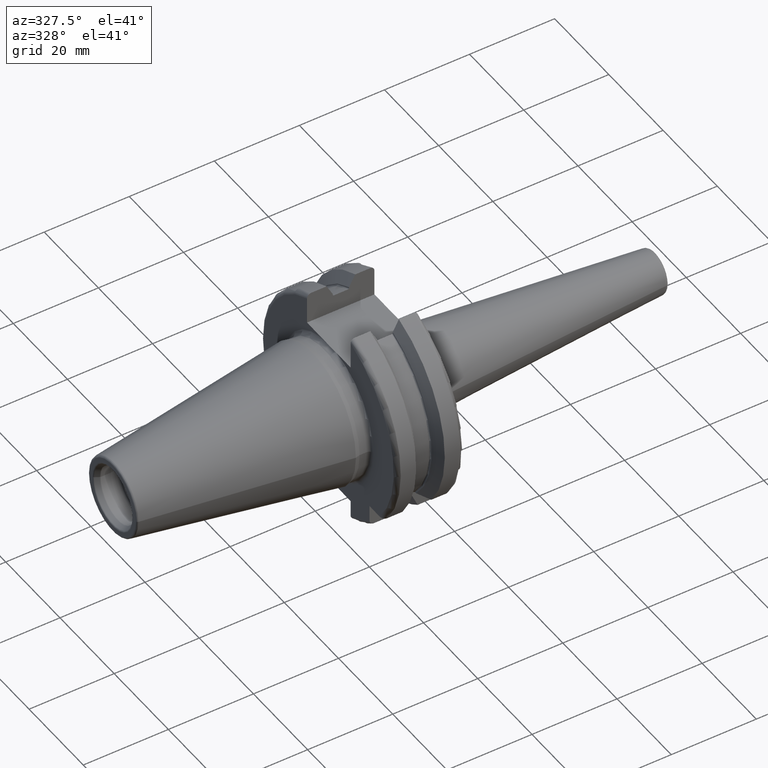
[diagram: clean part render]
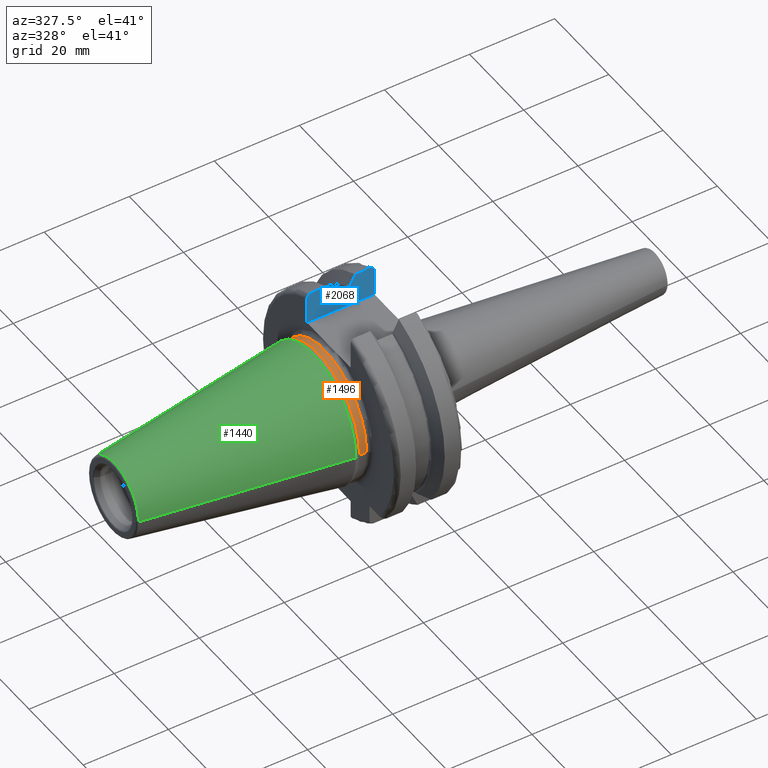
[diagram: same view with three faces highlighted in distinct colors, each labeled with its STEP entity id]
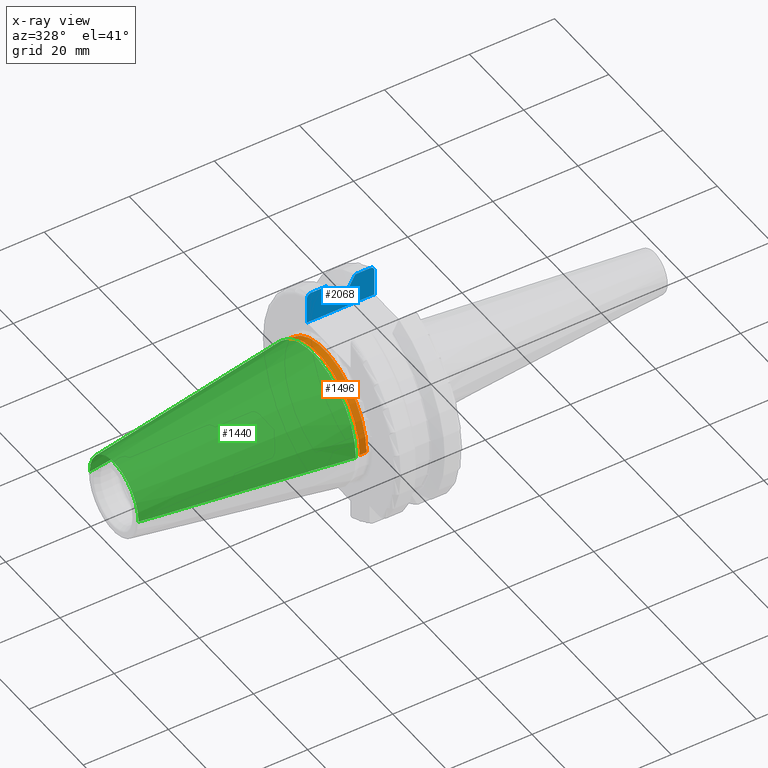
[diagram: x-ray of the same camera — body ghosted, the three highlighted faces saturated]
A machine part, auxiliary view with three faces highlighted in distinct colors.
The next image is the same camera in x-ray (body ghosted, the three faces saturated) — at least one of them is partly hidden behind the body in this view.
Their STEP definitions:

[orange] entity #1496 — the highlighted cylindrical surface (partial cylindrical patch) has radius 15.525 mm, axis along (1, 0, 0).
#73=CARTESIAN_POINT('',(5.5E-1,0.E0,0.E0));
#74=DIRECTION('',(1.E0,0.E0,0.E0));
#75=DIRECTION('',(0.E0,1.E0,0.E0));
#76=AXIS2_PLACEMENT_3D('',#73,#74,#75);
#78=CARTESIAN_POINT('',(2.2E0,0.E0,0.E0));
#79=DIRECTION('',(1.E0,0.E0,0.E0));
#80=DIRECTION('',(0.E0,1.E0,0.E0));
#81=AXIS2_PLACEMENT_3D('',#78,#79,#80);
#83=DIRECTION('',(-1.E0,0.E0,0.E0));
#84=VECTOR('',#83,1.65E0);
#85=CARTESIAN_POINT('',(2.2E0,1.5525E1,0.E0));
#86=LINE('',#85,#84);
#87=DIRECTION('',(-1.E0,0.E0,0.E0));
#88=VECTOR('',#87,1.65E0);
#89=CARTESIAN_POINT('',(2.2E0,-1.5525E1,0.E0));
#90=LINE('',#89,#88);
#1143=CARTESIAN_POINT('',(2.2E0,1.5525E1,0.E0));
#1145=VERTEX_POINT('',#1143);
#1146=CARTESIAN_POINT('',(5.5E-1,1.5525E1,0.E0));
#1147=VERTEX_POINT('',#1146);
#1149=CARTESIAN_POINT('',(2.2E0,-1.5525E1,0.E0));
#1151=VERTEX_POINT('',#1149);
#1152=CARTESIAN_POINT('',(5.5E-1,-1.5525E1,0.E0));
#1153=VERTEX_POINT('',#1152);
#1482=CARTESIAN_POINT('',(-5.0985E1,0.E0,0.E0));
#1483=DIRECTION('',(1.E0,0.E0,0.E0));
#1484=DIRECTION('',(0.E0,-1.E0,0.E0));
#1485=AXIS2_PLACEMENT_3D('',#1482,#1483,#1484);
#1486=CYLINDRICAL_SURFACE('',#1485,1.5525E1);
#1488=ORIENTED_EDGE('',*,*,#1487,.F.);
#1490=ORIENTED_EDGE('',*,*,#1489,.T.);
#1492=ORIENTED_EDGE('',*,*,#1491,.T.);
#1493=ORIENTED_EDGE('',*,*,#1475,.F.);
#1494=EDGE_LOOP('',(#1488,#1490,#1492,#1493));
#1495=FACE_OUTER_BOUND('',#1494,.F.);
#1496=ADVANCED_FACE('',(#1495),#1486,.T.);
#77=CIRCLE('',#76,1.5525E1);
#82=CIRCLE('',#81,1.5525E1);
#1475=EDGE_CURVE('',#1147,#1153,#77,.T.);
#1487=EDGE_CURVE('',#1145,#1147,#86,.T.);
#1489=EDGE_CURVE('',#1145,#1151,#82,.T.);
#1491=EDGE_CURVE('',#1151,#1153,#90,.T.);

[blue] entity #2068 — the highlighted planar face has unit normal (0, 1, 0).
#164=DIRECTION('',(0.E0,0.E0,-1.E0));
#165=VECTOR('',#164,6.299061927434E0);
#166=CARTESIAN_POINT('',(1.905E1,8.05E0,2.259906192743E1));
#167=LINE('',#166,#165);
#182=DIRECTION('',(0.E0,0.E0,-1.E0));
#183=VECTOR('',#182,2.010155149636E-1);
#184=CARTESIAN_POINT('',(9.2625E0,8.05E0,2.097053946232E1));
#185=LINE('',#184,#183);
#264=CARTESIAN_POINT('',(9.2625E0,8.05E0,2.076952394736E1));
#265=CARTESIAN_POINT('',(9.2625E0,8.05E0,2.073187780160E1));
#266=CARTESIAN_POINT('',(9.276067528209E0,8.05E0,2.066300861555E1));
#267=CARTESIAN_POINT('',(9.333632786878E0,8.05E0,2.057158784050E1));
#268=CARTESIAN_POINT('',(9.418378467911E0,8.05E0,2.051405396285E1));
#269=CARTESIAN_POINT('',(9.479594642679E0,8.05E0,2.050117374689E1));
#270=CARTESIAN_POINT('',(9.5125E0,8.05E0,2.050117374689E1));
#311=DIRECTION('',(1.E0,0.E0,0.E0));
#312=VECTOR('',#311,3.325E0);
#313=CARTESIAN_POINT('',(9.5125E0,8.05E0,2.050117374689E1));
#314=LINE('',#313,#312);
#360=CARTESIAN_POINT('',(9.2625E0,8.05E0,2.097053946232E1));
#361=CARTESIAN_POINT('',(9.107499443139E0,8.05E0,2.125810926880E1));
#362=CARTESIAN_POINT('',(8.792722656959E0,8.05E0,2.184058962555E1));
#363=CARTESIAN_POINT('',(8.306354261993E0,8.05E0,2.273624464338E1));
#364=CARTESIAN_POINT('',(7.972547925064E0,8.05E0,2.334823038493E1));
#365=CARTESIAN_POINT('',(7.803274427933E0,8.05E0,2.365792890344E1));
#433=DIRECTION('',(1.E0,0.E0,0.E0));
#434=VECTOR('',#433,3.603274427933E0);
#435=CARTESIAN_POINT('',(4.2E0,8.05E0,2.365792890344E1));
#436=LINE('',#435,#434);
#446=DIRECTION('',(1.E0,0.E0,0.E0));
#447=VECTOR('',#446,3.503274427933E0);
#448=CARTESIAN_POINT('',(1.454672557207E1,8.05E0,2.365792890344E1));
#449=LINE('',#448,#447);
#500=CARTESIAN_POINT('',(1.30875E1,8.05E0,2.097053946232E1));
#501=CARTESIAN_POINT('',(1.324250055686E1,8.05E0,2.125810926880E1));
#502=CARTESIAN_POINT('',(1.355727734304E1,8.05E0,2.184058962555E1));
#503=CARTESIAN_POINT('',(1.404364573801E1,8.05E0,2.273624464338E1));
#504=CARTESIAN_POINT('',(1.437745207494E1,8.05E0,2.334823038493E1));
#505=CARTESIAN_POINT('',(1.454672557207E1,8.05E0,2.365792890344E1));
#511=DIRECTION('',(0.E0,0.E0,-1.E0));
#512=VECTOR('',#511,2.010155149636E-1);
#513=CARTESIAN_POINT('',(1.30875E1,8.05E0,2.097053946232E1));
#514=LINE('',#513,#512);
#536=DIRECTION('',(-1.E0,0.E0,0.E0));
#537=VECTOR('',#536,1.585E1);
#538=CARTESIAN_POINT('',(1.905E1,8.05E0,1.63E1));
#539=LINE('',#538,#537);
#607=CARTESIAN_POINT('',(1.28375E1,8.05E0,2.050117374689E1));
#608=CARTESIAN_POINT('',(1.287040655318E1,8.05E0,2.050117374689E1));
#609=CARTESIAN_POINT('',(1.293162343753E1,8.05E0,2.051407928406E1));
#610=CARTESIAN_POINT('',(1.301621033138E1,8.05E0,2.057143537883E1));
#611=CARTESIAN_POINT('',(1.307392336501E1,8.05E0,2.066293039418E1));
#612=CARTESIAN_POINT('',(1.30875E1,8.05E0,2.073184300563E1));
#613=CARTESIAN_POINT('',(1.30875E1,8.05E0,2.076952394736E1));
#697=CARTESIAN_POINT('',(1.805E1,8.05E0,2.365792890344E1));
#698=CARTESIAN_POINT('',(1.812787778922E1,8.05E0,2.365792890344E1));
#699=CARTESIAN_POINT('',(1.827882991524E1,8.05E0,2.363929172395E1));
#700=CARTESIAN_POINT('',(1.849654974587E1,8.05E0,2.355713862194E1));
#701=CARTESIAN_POINT('',(1.868847466175E1,8.05E0,2.342608613141E1));
#702=CARTESIAN_POINT('',(1.884523785092E1,8.05E0,2.325594508190E1));
#703=CARTESIAN_POINT('',(1.896155033894E1,8.05E0,2.305567967645E1));
#704=CARTESIAN_POINT('',(1.903340173188E1,8.05E0,2.283388392250E1));
#705=CARTESIAN_POINT('',(1.905E1,8.05E0,2.267892272356E1));
#706=CARTESIAN_POINT('',(1.905E1,8.05E0,2.259906192743E1));
#786=CARTESIAN_POINT('',(3.2E0,8.05E0,2.259906192743E1));
#787=CARTESIAN_POINT('',(3.2E0,8.05E0,2.267926233796E1));
#788=CARTESIAN_POINT('',(3.216724472539E0,8.05E0,2.283487612349E1));
#789=CARTESIAN_POINT('',(3.289318572837E0,8.05E0,2.305785531284E1));
#790=CARTESIAN_POINT('',(3.406709259601E0,8.05E0,2.325865402046E1));
#791=CARTESIAN_POINT('',(3.564067010659E0,8.05E0,2.342822088815E1));
#792=CARTESIAN_POINT('',(3.755500258931E0,8.05E0,2.355808657354E1));
#793=CARTESIAN_POINT('',(3.972085812479E0,8.05E0,2.363942333926E1));
#794=CARTESIAN_POINT('',(4.122434247216E0,8.05E0,2.365792890344E1));
#795=CARTESIAN_POINT('',(4.2E0,8.05E0,2.365792890344E1));
#801=DIRECTION('',(0.E0,0.E0,-1.E0));
#802=VECTOR('',#801,6.299061927434E0);
#803=CARTESIAN_POINT('',(3.2E0,8.05E0,2.259906192743E1));
#804=LINE('',#803,#802);
#1220=CARTESIAN_POINT('',(9.2625E0,8.05E0,2.097053946232E1));
#1221=CARTESIAN_POINT('',(9.2625E0,8.05E0,2.076952394736E1));
#1222=VERTEX_POINT('',#1220);
#1223=VERTEX_POINT('',#1221);
#1233=VERTEX_POINT('',#270);
#1236=CARTESIAN_POINT('',(1.28375E1,8.05E0,2.050117374689E1));
#1237=VERTEX_POINT('',#1236);
#1239=VERTEX_POINT('',#613);
#1250=CARTESIAN_POINT('',(1.30875E1,8.05E0,2.097053946232E1));
#1251=VERTEX_POINT('',#1250);
#1261=VERTEX_POINT('',#505);
#1263=VERTEX_POINT('',#365);
#1296=CARTESIAN_POINT('',(1.905E1,8.05E0,1.63E1));
#1297=VERTEX_POINT('',#1296);
#1298=CARTESIAN_POINT('',(1.905E1,8.05E0,2.259906192743E1));
#1299=VERTEX_POINT('',#1298);
#1310=CARTESIAN_POINT('',(4.2E0,8.05E0,2.365792890344E1));
#1311=VERTEX_POINT('',#1310);
#1312=CARTESIAN_POINT('',(1.805E1,8.05E0,2.365792890344E1));
#1313=VERTEX_POINT('',#1312);
#1329=CARTESIAN_POINT('',(3.2E0,8.05E0,1.63E1));
#1331=VERTEX_POINT('',#1329);
#1332=CARTESIAN_POINT('',(3.2E0,8.05E0,2.259906192743E1));
#1333=VERTEX_POINT('',#1332);
#2043=CARTESIAN_POINT('',(1.905E1,8.05E0,1.63E1));
#2044=DIRECTION('',(0.E0,1.E0,0.E0));
#2045=DIRECTION('',(0.E0,0.E0,1.E0));
#2046=AXIS2_PLACEMENT_3D('',#2043,#2044,#2045);
#2047=PLANE('',#2046);
#2048=ORIENTED_EDGE('',*,*,#1639,.T.);
#2049=ORIENTED_EDGE('',*,*,#1717,.T.);
#2050=ORIENTED_EDGE('',*,*,#1793,.T.);
#2052=ORIENTED_EDGE('',*,*,#2051,.T.);
#2053=ORIENTED_EDGE('',*,*,#2008,.F.);
#2054=ORIENTED_EDGE('',*,*,#1996,.T.);
#2055=ORIENTED_EDGE('',*,*,#1954,.T.);
#2057=ORIENTED_EDGE('',*,*,#2056,.T.);
#2058=ORIENTED_EDGE('',*,*,#1583,.T.);
#2059=ORIENTED_EDGE('',*,*,#1556,.T.);
#2061=ORIENTED_EDGE('',*,*,#2060,.F.);
#2063=ORIENTED_EDGE('',*,*,#2062,.T.);
#2064=ORIENTED_EDGE('',*,*,#1939,.T.);
#2065=ORIENTED_EDGE('',*,*,#1867,.F.);
#2066=EDGE_LOOP('',(#2048,#2049,#2050,#2052,#2053,#2054,#2055,#2057,#2058,#2059,
#2061,#2063,#2064,#2065));
#2067=FACE_OUTER_BOUND('',#2066,.F.);
#2068=ADVANCED_FACE('',(#2067),#2047,.F.);
#271=B_SPLINE_CURVE_WITH_KNOTS('',3,(#264,#265,#266,#267,#268,#269,#270),
.UNSPECIFIED.,.F.,.F.,(4,1,1,1,4),(0.E0,2.5E-1,5.E-1,7.5E-1,1.E0),
.UNSPECIFIED.);
#366=B_SPLINE_CURVE_WITH_KNOTS('',3,(#360,#361,#362,#363,#364,#365),
.UNSPECIFIED.,.F.,.F.,(4,1,1,4),(0.E0,3.333333333333E-1,6.666666666667E-1,1.E0),
.UNSPECIFIED.);
#506=B_SPLINE_CURVE_WITH_KNOTS('',3,(#500,#501,#502,#503,#504,#505),
.UNSPECIFIED.,.F.,.F.,(4,1,1,4),(0.E0,3.333333333333E-1,6.666666666667E-1,1.E0),
.UNSPECIFIED.);
#614=B_SPLINE_CURVE_WITH_KNOTS('',3,(#607,#608,#609,#610,#611,#612,#613),
.UNSPECIFIED.,.F.,.F.,(4,1,1,1,4),(0.E0,2.5E-1,5.E-1,7.5E-1,1.E0),
.UNSPECIFIED.);
#707=B_SPLINE_CURVE_WITH_KNOTS('',3,(#697,#698,#699,#700,#701,#702,#703,#704,
#705,#706),.UNSPECIFIED.,.F.,.F.,(4,1,1,1,1,1,1,4),(0.E0,1.428571428571E-1,
2.857142857143E-1,4.285714285714E-1,5.714285714286E-1,7.142857142857E-1,
8.571428571429E-1,1.E0),.UNSPECIFIED.);
#796=B_SPLINE_CURVE_WITH_KNOTS('',3,(#786,#787,#788,#789,#790,#791,#792,#793,
#794,#795),.UNSPECIFIED.,.F.,.F.,(4,1,1,1,1,1,1,4),(0.E0,1.428571428571E-1,
2.857142857143E-1,4.285714285714E-1,5.714285714286E-1,7.142857142857E-1,
8.571428571429E-1,1.E0),.UNSPECIFIED.);
#1556=EDGE_CURVE('',#1297,#1331,#539,.T.);
#1583=EDGE_CURVE('',#1299,#1297,#167,.T.);
#1639=EDGE_CURVE('',#1222,#1223,#185,.T.);
#1717=EDGE_CURVE('',#1223,#1233,#271,.T.);
#1793=EDGE_CURVE('',#1233,#1237,#314,.T.);
#1867=EDGE_CURVE('',#1222,#1263,#366,.T.);
#1939=EDGE_CURVE('',#1311,#1263,#436,.T.);
#1954=EDGE_CURVE('',#1261,#1313,#449,.T.);
#1996=EDGE_CURVE('',#1251,#1261,#506,.T.);
#2008=EDGE_CURVE('',#1251,#1239,#514,.T.);
#2051=EDGE_CURVE('',#1237,#1239,#614,.T.);
#2056=EDGE_CURVE('',#1313,#1299,#707,.T.);
#2060=EDGE_CURVE('',#1333,#1331,#804,.T.);
#2062=EDGE_CURVE('',#1333,#1311,#796,.T.);

[green] entity #1440 — the highlighted conical surface has half-angle 8.298 deg.
#37=CARTESIAN_POINT('',(-4.726494340113E1,0.E0,0.E0));
#38=DIRECTION('',(1.E0,0.E0,0.E0));
#39=DIRECTION('',(0.E0,1.E0,0.E0));
#40=AXIS2_PLACEMENT_3D('',#37,#38,#39);
#42=CARTESIAN_POINT('',(-4.896823332305E-1,0.E0,0.E0));
#43=DIRECTION('',(1.E0,0.E0,0.E0));
#44=DIRECTION('',(0.E0,1.E0,0.E0));
#45=AXIS2_PLACEMENT_3D('',#42,#43,#44);
#47=DIRECTION('',(-9.895312636440E-1,-1.443186691705E-1,0.E0));
#48=VECTOR('',#47,4.727011948632E1);
#49=CARTESIAN_POINT('',(-4.896823332305E-1,1.580358204157E1,0.E0));
#50=LINE('',#49,#48);
#51=DIRECTION('',(-9.895312636440E-1,1.443186691705E-1,0.E0));
#52=VECTOR('',#51,4.727011948632E1);
#53=CARTESIAN_POINT('',(-4.896823332305E-1,-1.580358204157E1,0.E0));
#54=LINE('',#53,#52);
#1134=CARTESIAN_POINT('',(-4.726494340113E1,8.981621305778E0,0.E0));
#1136=VERTEX_POINT('',#1134);
#1138=CARTESIAN_POINT('',(-4.726494340113E1,-8.981621305778E0,0.E0));
#1140=VERTEX_POINT('',#1138);
#1204=CARTESIAN_POINT('',(-4.896823332305E-1,1.580358204157E1,0.E0));
#1205=VERTEX_POINT('',#1204);
#1206=CARTESIAN_POINT('',(-4.896823332305E-1,-1.580358204157E1,0.E0));
#1207=VERTEX_POINT('',#1206);
#1426=CARTESIAN_POINT('',(-2.387731286718E1,0.E0,0.E0));
#1427=DIRECTION('',(1.E0,0.E0,0.E0));
#1428=DIRECTION('',(0.E0,-1.E0,0.E0));
#1429=AXIS2_PLACEMENT_3D('',#1426,#1427,#1428);
#1430=CONICAL_SURFACE('',#1429,1.239260167368E1,8.297826828206E0);
#1432=ORIENTED_EDGE('',*,*,#1431,.F.);
#1434=ORIENTED_EDGE('',*,*,#1433,.T.);
#1436=ORIENTED_EDGE('',*,*,#1435,.T.);
#1437=ORIENTED_EDGE('',*,*,#1419,.F.);
#1438=EDGE_LOOP('',(#1432,#1434,#1436,#1437));
#1439=FACE_OUTER_BOUND('',#1438,.F.);
#1440=ADVANCED_FACE('',(#1439),#1430,.T.);
#41=CIRCLE('',#40,8.981621305778E0);
#46=CIRCLE('',#45,1.580358204157E1);
#1419=EDGE_CURVE('',#1136,#1140,#41,.T.);
#1431=EDGE_CURVE('',#1205,#1136,#50,.T.);
#1433=EDGE_CURVE('',#1205,#1207,#46,.T.);
#1435=EDGE_CURVE('',#1207,#1140,#54,.T.);